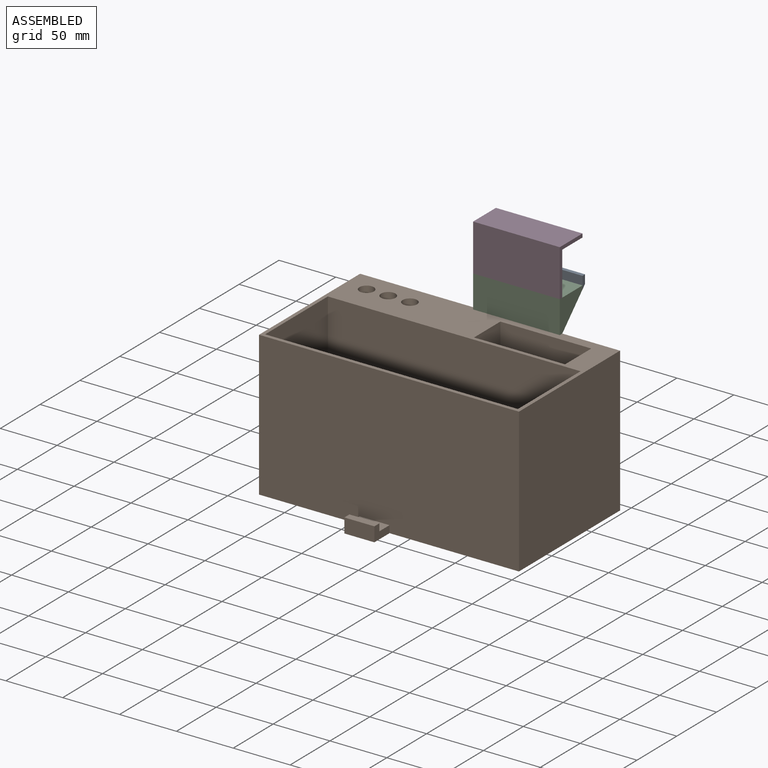
[diagram: assembled view]
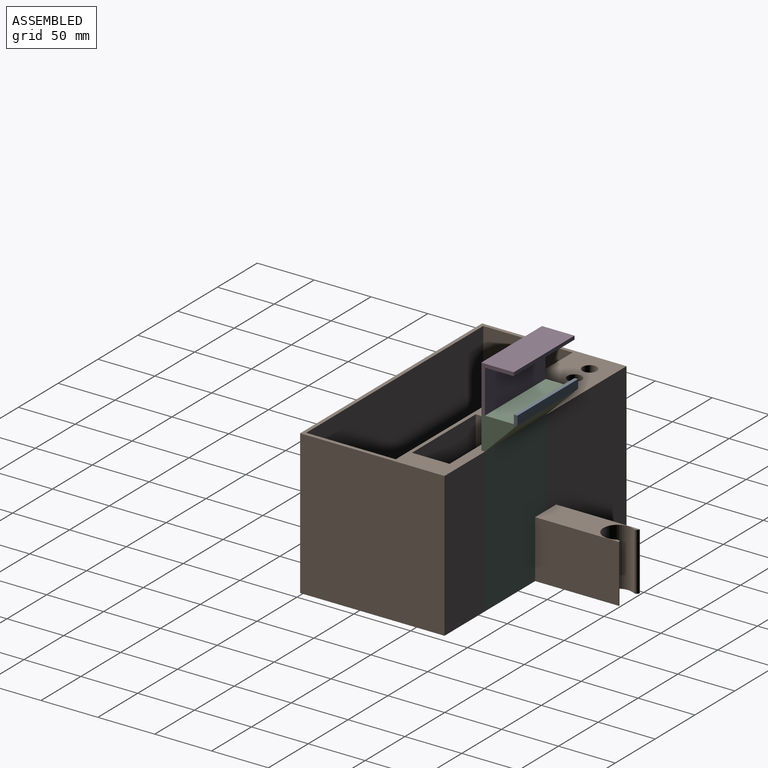
[diagram: assembled view, second angle]
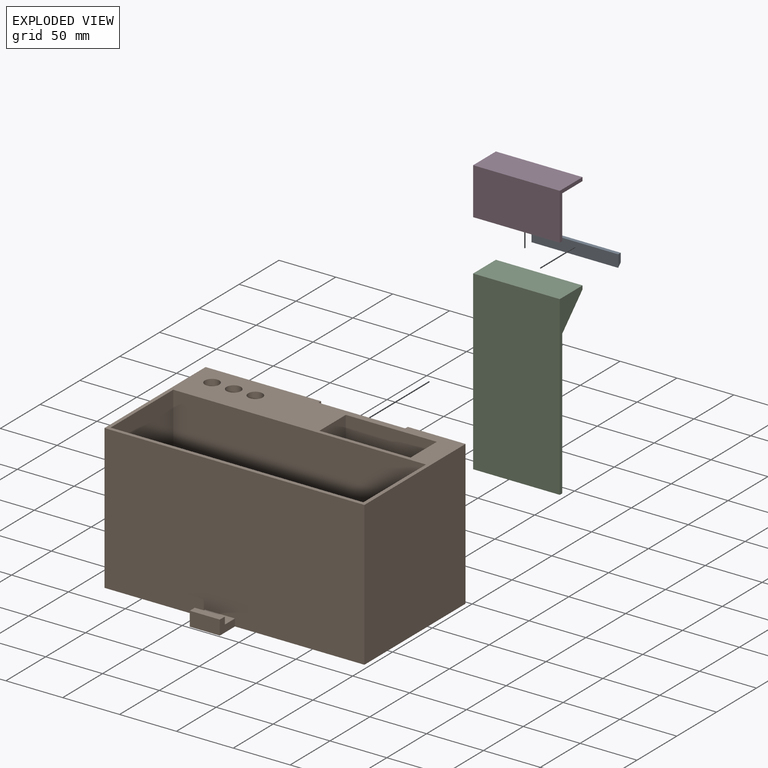
[diagram: exploded view]
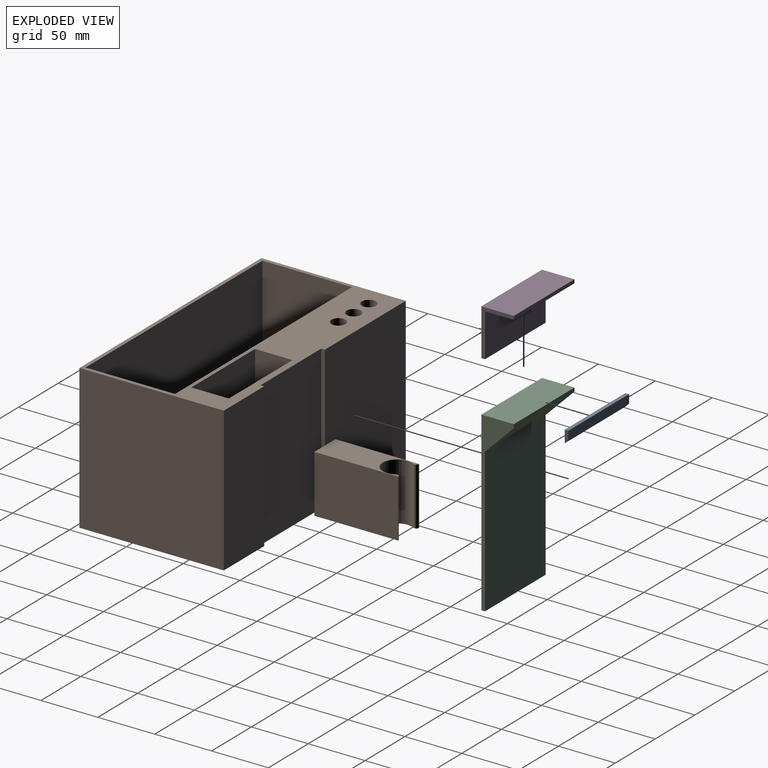
[diagram: exploded view, second angle]
ASSEMBLY  parts=4 mates=3
PART A: 6 faces, bbox 10.8x76.2x3.2 mm
  f0: plane 76.2x3.18mm, normal (1,0,0), area 241.9mm2, adj f1,f2,f3,f4
  f1: plane 10.8x3.18mm, normal (0,1,0), area 29.2mm2, adj f0,f3,f4,f5
  f2: plane 10.8x3.18mm, normal (0,-1,0), area 29.2mm2, adj f0,f3,f4,f5
  f3: plane 76.2x7.62mm, normal (0,0,1), area 580.6mm2, adj f0,f1,f2,f5
  f4: plane 76.2x10.8mm, normal (0,0,-1), area 822.6mm2, adj f0,f1,f2,f5
  f5: plane 76.2x3.18mm, normal (-0.71,0,0.71), area 342.1mm2, adj f1,f2,f3,f4
PART B: 39 faces, bbox 228.6x219.7x127 mm
  f0: plane 26.39x12.7mm, normal (0,0,1), area 335.2mm2, adj f6,f34,f35,f37
  f1: plane 127x127mm, normal (-1,0,0), area 16129mm2, adj f3,f4,f5,f6
  f2: plane 73.66x26.4mm, normal (0,0,1), area 1452.5mm2, adj f5,f12,f13,f14,f15,f32,f33
  f3: plane 228.6x219.71mm, normal (0,0,-1), area 30745.5mm2, adj f1,f5,f6,f7,f8,f9,f10,f11
  f4: plane 228.6x127mm, normal (0,0,1), area 8268.3mm2, adj f1,f5,f6,f7,f8,f9,f10,f11
  f5: plane 127x101.6mm, normal (0,1,0), area 12232.7mm2, adj f1,f2,f3,f4,f11,f33
  f6: plane 228.6x127mm, normal (0,-1,0), area 28864.6mm2, adj f0,f1,f3,f4,f7,f34,f35
  f7: plane 127x127mm, normal (1,0,0), area 16129mm2, adj f3,f4,f6,f8
  f8: plane 127x50.8mm, normal (0,1,0), area 6451.6mm2, adj f3,f4,f7,f9
  f9: plane 127x3.18mm, normal (-1,0,0), area 403.2mm2, adj f3,f4,f8,f10
  f10: plane 127x76.2mm, normal (0,1,0), area 9677.4mm2, adj f3,f4,f9,f11
  f11: plane 127x3.18mm, normal (1,0,0), area 403.2mm2, adj f3,f4,f5,f10,f12
  f12: plane 50.8x13.2mm, normal (0,-1,0), area 670.5mm2, adj f2,f3,f11,f32
  f13: cylinder r=12.7mm len=50.8mm, axis (0,0,-1), area 2702.4mm2, adj f2,f3,f14,f15
  f14: cylinder r=2.54mm len=50.8mm, axis (0,0,-1), area 270.2mm2, adj f2,f3,f13,f32
  f15: cylinder r=2.54mm len=50.8mm, axis (0,0,-1), area 270.2mm2, adj f2,f3,f13,f33
  f16: plane 63.5x33.02mm, normal (1,0,0), area 2096.8mm2, adj f4,f17,f19,f20
  f17: plane 80.01x63.5mm, normal (0,1,0), area 5080.6mm2, adj f4,f16,f18,f20
  f18: plane 63.5x33.02mm, normal (-1,0,0), area 2096.8mm2, adj f4,f17,f19,f20
  f19: plane 80.01x63.5mm, normal (0,-1,0), area 5080.6mm2, adj f4,f16,f18,f20
  f20: plane 80.01x33.02mm, normal (0,0,1), area 2641.9mm2, adj f16,f17,f18,f19
  f21: plane 123.83x78.74mm, normal (-1,0,0), area 9750mm2, adj f4,f22,f24,f25
  f22: plane 222.25x123.83mm, normal (0,-1,0), area 27520.1mm2, adj f4,f21,f23,f25
  f23: plane 123.83x78.74mm, normal (1,0,0), area 9750mm2, adj f4,f22,f24,f25
  f24: plane 222.25x123.83mm, normal (0,1,0), area 27520.1mm2, adj f4,f21,f23,f25
  f25: plane 222.25x78.74mm, normal (0,0,1), area 17500mm2, adj f21,f22,f23,f24
  f26: cone r=0mm half-angle=59deg, axis (0,0,1), area 147.8mm2, adj f27
  f27: cylinder r=6.35mm len=83.82mm, axis (0,0,1), area 3344.3mm2, adj f4,f26
  f28: cone r=0mm half-angle=59deg, axis (0,0,1), area 147.8mm2, adj f29
  f29: cylinder r=6.35mm len=83.82mm, axis (0,0,1), area 3344.3mm2, adj f4,f28
  f30: cone r=0mm half-angle=59deg, axis (0,0,1), area 147.8mm2, adj f31
  f31: cylinder r=6.35mm len=83.82mm, axis (0,0,1), area 3344.3mm2, adj f4,f30
  f32: plane 73.66x50.8mm, normal (1,0,0), area 3741.9mm2, adj f2,f3,f12,f14
  f33: plane 73.66x50.8mm, normal (-1,0,0), area 3741.9mm2, adj f2,f3,f5,f15
  f34: plane 19.05x12.7mm, normal (-1,0,0), area 161.3mm2, adj f0,f3,f6,f36,f37,f38
  f35: plane 19.05x12.7mm, normal (1,0,0), area 161.3mm2, adj f0,f3,f6,f36,f37,f38
  f36: plane 26.39x12.7mm, normal (0,-1,0), area 335.2mm2, adj f3,f34,f35,f38
  f37: plane 26.39x6.35mm, normal (0,1,0), area 167.6mm2, adj f0,f34,f35,f38
  f38: plane 26.39x6.35mm, normal (0,0,1), area 167.6mm2, adj f34,f35,f36,f37
PART C: 8 faces, bbox 76.2x155.6x28.6 mm
  f0: plane 155.58x28.58mm, normal (1,0,0), area 897.2mm2, adj f1,f3,f4,f5,f6,f7
  f1: plane 76.2x28.58mm, normal (0,1,0), area 2177.4mm2, adj f0,f2,f5,f6
  f2: plane 155.58x28.58mm, normal (-1,0,0), area 897.2mm2, adj f1,f3,f4,f5,f6,f7
  f3: plane 76.2x3.18mm, normal (0,-1,0), area 241.9mm2, adj f0,f2,f4,f5
  f4: plane 127x76.2mm, normal (0,0,1), area 9677.4mm2, adj f0,f2,f3,f7
  f5: plane 155.58x76.2mm, normal (0,0,-1), area 11854.8mm2, adj f0,f1,f2,f3
  f6: plane 76.2x3.18mm, normal (0,0,1), area 241.9mm2, adj f0,f1,f2,f7
  f7: plane 76.2x25.4mm, normal (0,-0.71,0.71), area 2737.2mm2, adj f0,f2,f4,f6
PART D: 8 faces, bbox 76.2x41.3x28.6 mm
  f0: plane 76.2x38.1mm, normal (0,0,1), area 2903.2mm2, adj f2,f3,f4,f6
  f1: plane 76.2x28.58mm, normal (0,1,0), area 2177.4mm2, adj f2,f4,f5,f7
  f2: plane 41.28x28.58mm, normal (-1,0,0), area 211.7mm2, adj f0,f1,f3,f5,f6,f7
  f3: plane 76.2x3.18mm, normal (0,-1,0), area 241.9mm2, adj f0,f2,f4,f5
  f4: plane 41.28x28.58mm, normal (1,0,0), area 211.7mm2, adj f0,f1,f3,f5,f6,f7
  f5: plane 76.2x41.28mm, normal (0,0,-1), area 3145.2mm2, adj f1,f2,f3,f4
  f6: plane 76.2x25.4mm, normal (0,-1,0), area 1935.5mm2, adj f0,f2,f4,f7
  f7: plane 76.2x3.18mm, normal (0,0,1), area 241.9mm2, adj f1,f2,f4,f6
PLACE A rot(axis=(-0.58,-0.58,-0.58),120deg) t=(163.91,157.19,294.65)mm
PLACE B t=(138.51,68.29,136.85)mm
PLACE C rot(axis=(0,0.71,0.71),180deg) t=(163.91,128.61,214.64)mm
PLACE D rot(axis=(0,0.71,0.71),180deg) t=(164.92,128.61,320.55)mm
MATE fastened C.f5 <-> B.f10  axis (0,-1,0) through (202.01,128.61,136.85)mm
MATE fastened D.f3 <-> C.f1  axis (0,0,-1) through (202.01,128.61,292.43)mm
MATE fastened A.f4 <-> C.f6  axis (0,-1,0) through (202.01,157.19,289.25)mm
